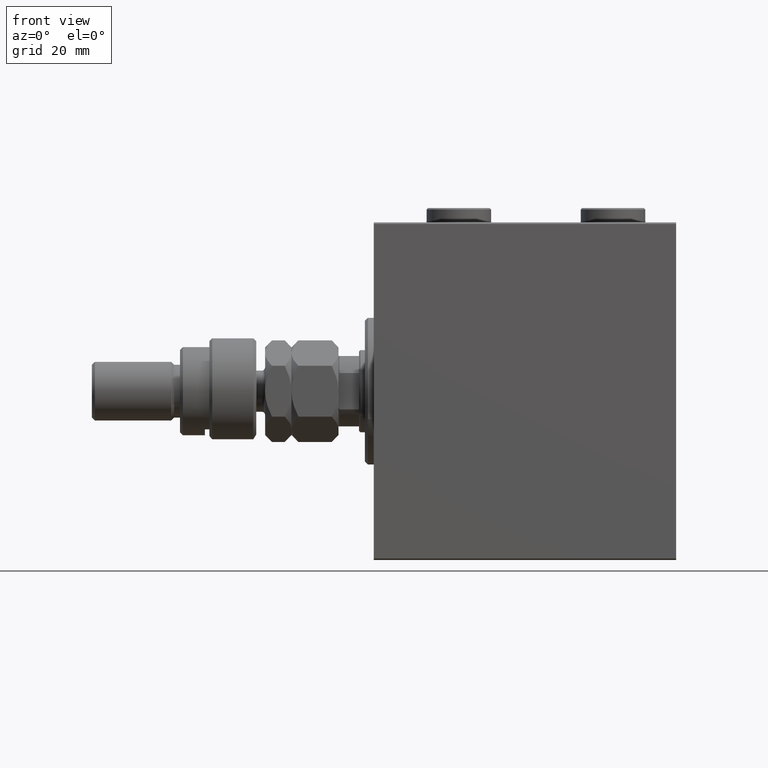
[diagram: clean part render]
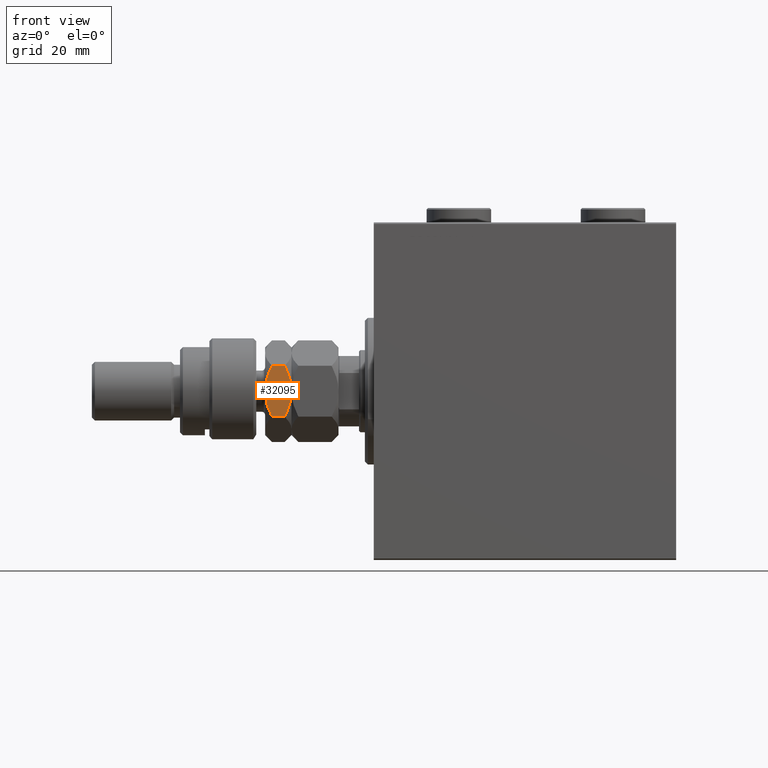
[diagram: same view with one face highlighted and labeled with its STEP entity id]
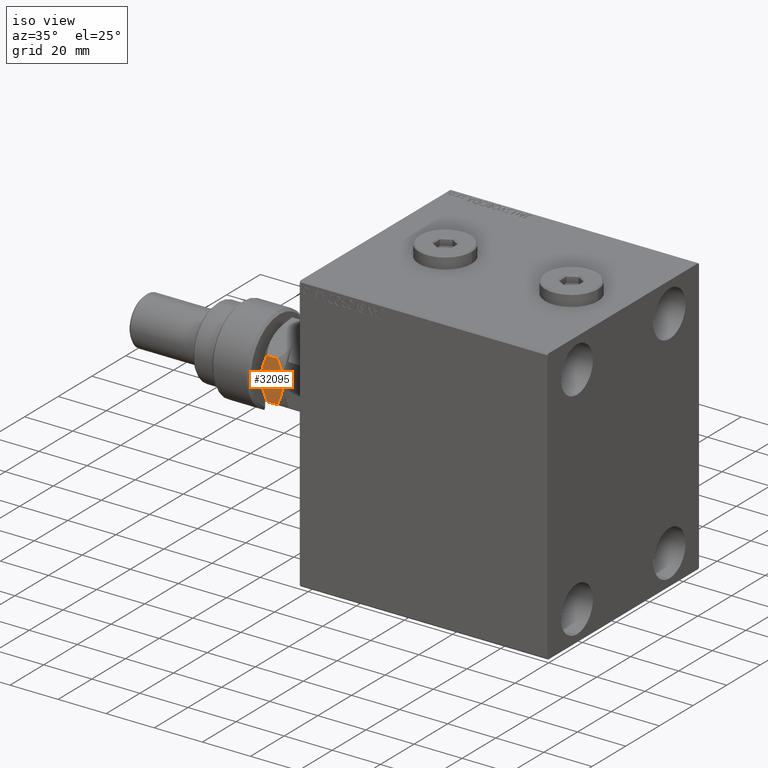
[diagram: same view with one face highlighted and labeled with its STEP entity id]
A machine part, front view. The second image highlights one B-rep face of the part: STEP entity #32095.
A second angle (iso view) of the same face is appended — the face is thin or edge-on in the first view.
In plain terms, the highlighted planar face has unit normal (0, 1, -0).
Its self-contained STEP definition (entity closure, byte-faithful):
#367 = LINE ( 'NONE', #30398, #47745 ) ;
#1140 = CARTESIAN_POINT ( 'NONE',  ( 15.00000000000000000, -8.660254037844381969, 18.32050807568876394 ) ) ;
#2369 = CARTESIAN_POINT ( 'NONE',  ( 2.383929548160350187, -15.94414570932928932, 17.06047903137087829 ) ) ;
#2484 = CARTESIAN_POINT ( 'NONE',  ( 14.99999999999999822, -8.660254037844383745, 22.67949192431123961 ) ) ;
#3026 = LINE ( 'NONE', #39178, #18697 ) ;
#4265 = B_SPLINE_CURVE_WITH_KNOTS ( 'NONE', 3,
 ( #7821, #20423, #12417, #16545, #42027, #2484 ),
 .UNSPECIFIED., .F., .F.,
 ( 4, 2, 4 ),
 ( 0.008977392552884448998, 0.01343452311421656706, 0.01789165367554868338 ),
 .UNSPECIFIED. ) ;
#4745 = EDGE_CURVE ( 'NONE', #43181, #26343, #3026, .T. ) ;
#4938 = DIRECTION ( 'NONE',  ( -0.000000000000000000, -0.000000000000000000, -1.000000000000000000 ) ) ;
#5031 = CARTESIAN_POINT ( 'NONE',  ( 1.174746544192163400, -16.64226784216984001, 17.64226784216978317 ) ) ;
#5355 = EDGE_CURVE ( 'NONE', #47558, #25734, #8051, .T. ) ;
#7821 = CARTESIAN_POINT ( 'NONE',  ( 7.500000000000001776, -12.99038105676657473, 25.00000000000000000 ) ) ;
#8051 = B_SPLINE_CURVE_WITH_KNOTS ( 'NONE', 3,
 ( #23702, #42641, #39000, #2369, #5031, #34864 ),
 .UNSPECIFIED., .F., .F.,
 ( 4, 2, 4 ),
 ( 0.008977392552884455937, 0.01343452311421657053, 0.01789165367554868338 ),
 .UNSPECIFIED. ) ;
#9673 = ORIENTED_EDGE ( 'NONE', *, *, #47500, .T. ) ;
#9748 = EDGE_CURVE ( 'NONE', #44959, #43181, #4265, .T. ) ;
#10909 = CARTESIAN_POINT ( 'NONE',  ( 8.823580389329300999, -12.22621156269319798, 16.05953537397470043 ) ) ;
#12417 = CARTESIAN_POINT ( 'NONE',  ( 10.08691881950259273, -11.49682277995504798, 24.76967007806078414 ) ) ;
#12661 = EDGE_LOOP ( 'NONE', ( #33726, #32824, #40719, #25208, #9673, #30504 ) ) ;
#13090 = CARTESIAN_POINT ( 'NONE',  ( 6.176419610670697224, -13.75455055083995681, 24.94046462602529957 ) ) ;
#14554 = CARTESIAN_POINT ( 'NONE',  ( 15.00000000000000000, -8.660254037844381969, 18.32050807568876394 ) ) ;
#14836 = CARTESIAN_POINT ( 'NONE',  ( 7.500000000000001776, -12.99038105676657473, 25.00000000000000000 ) ) ;
#15910 = CARTESIAN_POINT ( 'NONE',  ( 3.096598485618407139E-15, -17.32050807568877104, 22.67949192431123606 ) ) ;
#16110 = CARTESIAN_POINT ( 'NONE',  ( 7.499999999999993783, -12.99038105676658006, 16.00000000000000000 ) ) ;
#16545 = CARTESIAN_POINT ( 'NONE',  ( 12.61607045183964715, -10.03661640420386369, 23.93952096862911461 ) ) ;
#16734 = CARTESIAN_POINT ( 'NONE',  ( 3.096598485618407139E-15, -17.32050807568877104, 22.67949192431123606 ) ) ;
#18697 = VECTOR ( 'NONE', #21448, 1000.000000000000000 ) ;
#19144 = CARTESIAN_POINT ( 'NONE',  ( 12.62116548881249400, -10.03367478323606221, 17.06448606774401000 ) ) ;
#19421 = FACE_OUTER_BOUND ( 'NONE', #12661, .T. ) ;
#19667 = CARTESIAN_POINT ( 'NONE',  ( 2.552051520948485970E-15, -17.32050807568877104, 25.00000000000000000 ) ) ;
#20423 = CARTESIAN_POINT ( 'NONE',  ( 8.804550678576914535, -12.23719837131868715, 25.00000000000000000 ) ) ;
#20847 = CARTESIAN_POINT ( 'NONE',  ( 6.843123817691750155, -13.36962869744649751, 25.00000000000000355 ) ) ;
#21448 = DIRECTION ( 'NONE',  ( -0.000000000000000000, -0.000000000000000000, -1.000000000000000000 ) ) ;
#23702 = CARTESIAN_POINT ( 'NONE',  ( 7.499999999999993783, -12.99038105676658006, 16.00000000000000000 ) ) ;
#25208 = ORIENTED_EDGE ( 'NONE', *, *, #43116, .F. ) ;
#25702 = CARTESIAN_POINT ( 'NONE',  ( 8.156876182308245404, -12.61113341608665550, 16.00000000000000355 ) ) ;
#25734 = VERTEX_POINT ( 'NONE', #26526 ) ;
#26343 = VERTEX_POINT ( 'NONE', #1140 ) ;
#26526 = CARTESIAN_POINT ( 'NONE',  ( 2.765920654496385348E-15, -17.32050807568877104, 18.32050807568876749 ) ) ;
#26938 = DIRECTION ( 'NONE',  ( -0.8660254037844384856, -0.5000000000000001110, 0.000000000000000000 ) ) ;
#30398 = CARTESIAN_POINT ( 'NONE',  ( 2.552051520948485970E-15, -17.32050807568877104, 25.00000000000000000 ) ) ;
#30504 = ORIENTED_EDGE ( 'NONE', *, *, #5355, .F. ) ;
#30565 = PLANE ( 'NONE',  #38671 ) ;
#31520 = CARTESIAN_POINT ( 'NONE',  ( 2.378834511187506440, -15.94708733029709080, 23.93551393225599000 ) ) ;
#32095 = ADVANCED_FACE ( 'NONE', ( #19421 ), #30565, .F. ) ;
#32652 = VERTEX_POINT ( 'NONE', #15910 ) ;
#32824 = ORIENTED_EDGE ( 'NONE', *, *, #4745, .F. ) ;
#33726 = ORIENTED_EDGE ( 'NONE', *, *, #47324, .F. ) ;
#34864 = CARTESIAN_POINT ( 'NONE',  ( 2.765920654496385348E-15, -17.32050807568877104, 18.32050807568876749 ) ) ;
#36120 = CARTESIAN_POINT ( 'NONE',  ( 1.176108425306644945, -16.64148155974179488, 23.35851844025819801 ) ) ;
#36353 = B_SPLINE_CURVE_WITH_KNOTS ( 'NONE', 3,
 ( #14554, #37106, #19144, #40758, #44154, #10909, #25702, #40994 ),
 .UNSPECIFIED., .F., .F.,
 ( 4, 2, 2, 4 ),
 ( 2.544309033627217716E-07, 0.004488823491893913047, 0.006733108022389184058, 0.008977392552884455937 ),
 .UNSPECIFIED. ) ;
#37106 = CARTESIAN_POINT ( 'NONE',  ( 13.82389157469336283, -9.339280553791359907, 17.64148155974178778 ) ) ;
#38671 = AXIS2_PLACEMENT_3D ( 'NONE', #19667, #45386, #26938 ) ;
#39000 = CARTESIAN_POINT ( 'NONE',  ( 4.913081180497407274, -14.48393933357810681, 16.23032992193922297 ) ) ;
#39178 = CARTESIAN_POINT ( 'NONE',  ( 14.99999999999999822, -8.660254037844381969, 25.00000000000000000 ) ) ;
#40719 = ORIENTED_EDGE ( 'NONE', *, *, #9748, .F. ) ;
#40758 = CARTESIAN_POINT ( 'NONE',  ( 10.75222765045650775, -11.11270654730956409, 16.44757140851302779 ) ) ;
#40994 = CARTESIAN_POINT ( 'NONE',  ( 7.499999999999993783, -12.99038105676658006, 16.00000000000000000 ) ) ;
#42027 = CARTESIAN_POINT ( 'NONE',  ( 13.82525345580783771, -9.338494271363309451, 23.35773215783022039 ) ) ;
#42457 = CARTESIAN_POINT ( 'NONE',  ( 4.247772349543486925, -14.86805556622359070, 24.55242859148698642 ) ) ;
#42641 = CARTESIAN_POINT ( 'NONE',  ( 6.195449321423082800, -13.74356374221446586, 16.00000000000000355 ) ) ;
#42692 = CARTESIAN_POINT ( 'NONE',  ( 7.500000000000001776, -12.99038105676657473, 25.00000000000000000 ) ) ;
#43116 = EDGE_CURVE ( 'NONE', #32652, #44959, #46863, .T. ) ;
#43181 = VERTEX_POINT ( 'NONE', #44839 ) ;
#44154 = CARTESIAN_POINT ( 'NONE',  ( 10.11832554202262280, -11.47869010025374514, 16.28380266194629655 ) ) ;
#44839 = CARTESIAN_POINT ( 'NONE',  ( 14.99999999999999822, -8.660254037844383745, 22.67949192431123961 ) ) ;
#44959 = VERTEX_POINT ( 'NONE', #14836 ) ;
#45386 = DIRECTION ( 'NONE',  ( -0.5000000000000002220, 0.8660254037844385966, 0.000000000000000000 ) ) ;
#46332 = CARTESIAN_POINT ( 'NONE',  ( 4.881674457977378978, -14.50207201327941142, 24.71619733805371055 ) ) ;
#46863 = B_SPLINE_CURVE_WITH_KNOTS ( 'NONE', 3,
 ( #16734, #36120, #31520, #42457, #46332, #13090, #20847, #42692 ),
 .UNSPECIFIED., .F., .F.,
 ( 4, 2, 2, 4 ),
 ( 2.544309033651680028E-07, 0.004488823491893906975, 0.006733108022389177987, 0.008977392552884448998 ),
 .UNSPECIFIED. ) ;
#47324 = EDGE_CURVE ( 'NONE', #26343, #47558, #36353, .T. ) ;
#47500 = EDGE_CURVE ( 'NONE', #32652, #25734, #367, .T. ) ;
#47558 = VERTEX_POINT ( 'NONE', #16110 ) ;
#47745 = VECTOR ( 'NONE', #4938, 1000.000000000000000 ) ;